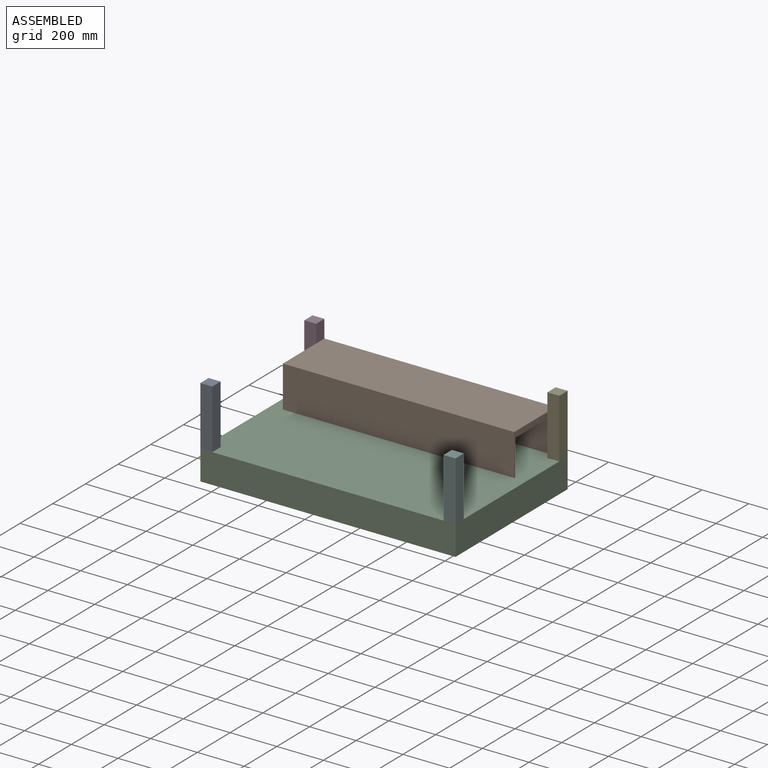
[diagram: assembled view]
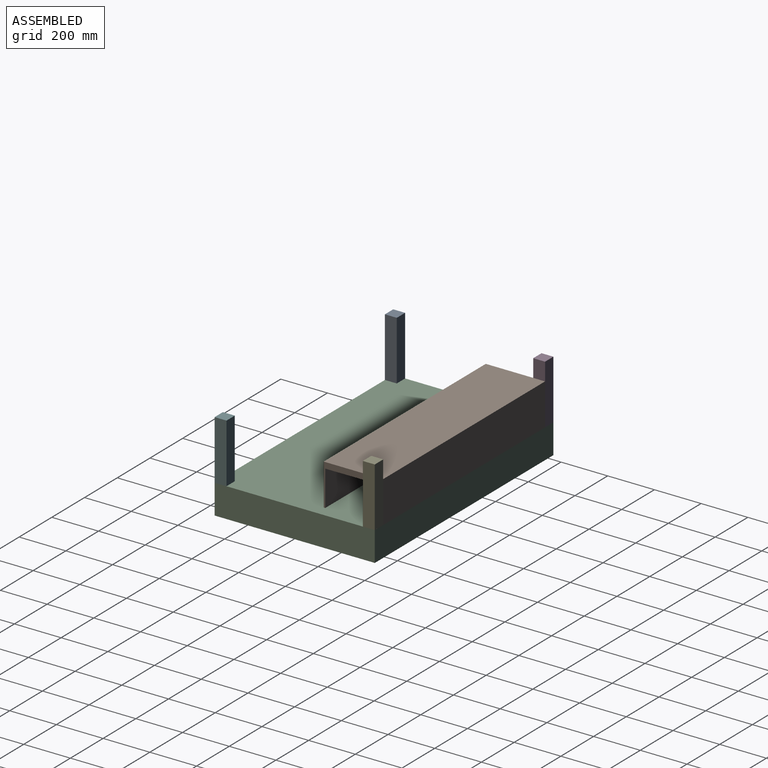
[diagram: assembled view, second angle]
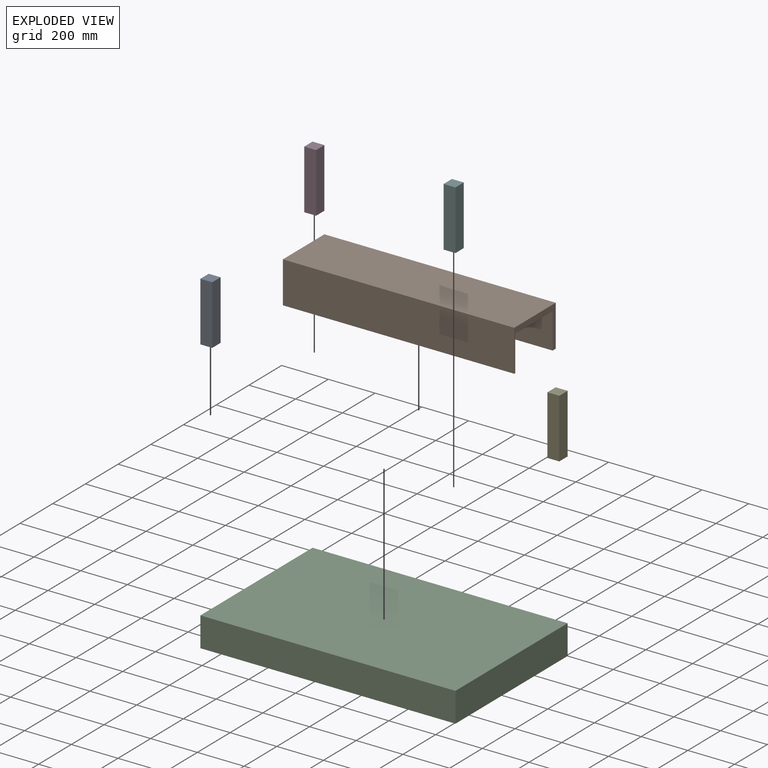
[diagram: exploded view]
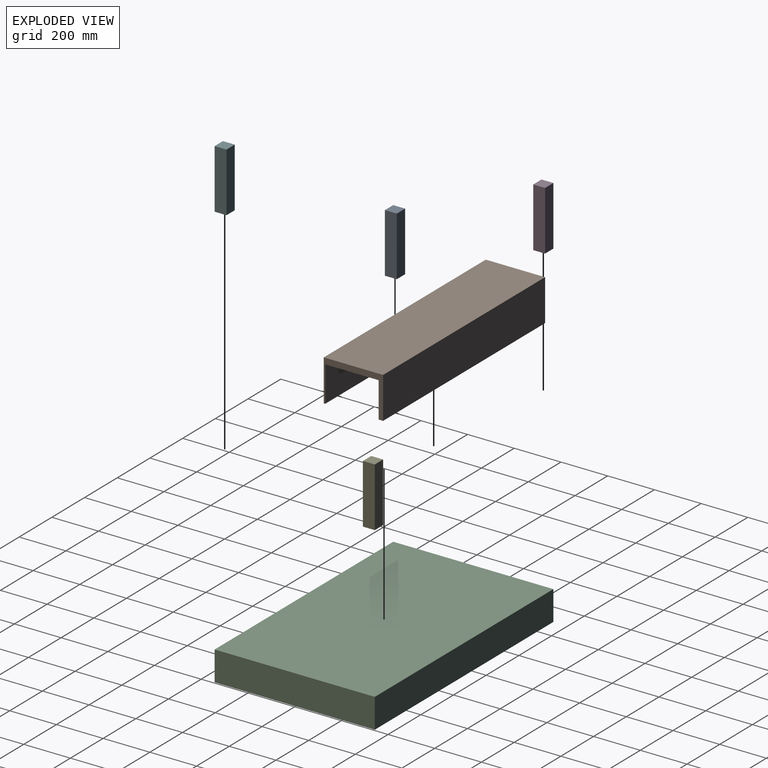
[diagram: exploded view, second angle]
ASSEMBLY  parts=6 mates=6
PART A: 6 faces, bbox 50.8x50.8x254 mm
  f0: plane 254x50.8mm, normal (-1,0,0), area 12903.2mm2, adj f1,f3,f4,f5
  f1: plane 50.8x50.8mm, normal (0,0,-1), area 2580.6mm2, adj f0,f2,f4,f5
  f2: plane 254x50.8mm, normal (1,0,0), area 12903.2mm2, adj f1,f3,f4,f5
  f3: plane 50.8x50.8mm, normal (0,0,1), area 2580.6mm2, adj f0,f2,f4,f5
  f4: plane 254x50.8mm, normal (0,-1,0), area 12903.2mm2, adj f0,f1,f2,f3
  f5: plane 254x50.8mm, normal (0,1,0), area 12903.2mm2, adj f0,f1,f2,f3
PART B: 10 faces, bbox 990.6x254x177.8 mm
  f0: plane 990.6x6.35mm, normal (0,0,-1), area 6290.3mm2, adj f1,f2,f5,f8
  f1: plane 254x177.8mm, normal (-1,0,0), area 10322.6mm2, adj f0,f3,f4,f5,f6,f7,f8,f9
  f2: plane 254x177.8mm, normal (1,0,0), area 10322.6mm2, adj f0,f3,f4,f5,f6,f7,f8,f9
  f3: plane 990.6x19.05mm, normal (0,0,-1), area 18870.9mm2, adj f1,f2,f6,f7
  f4: plane 990.6x254mm, normal (0,0,1), area 251612.4mm2, adj f1,f2,f5,f6
  f5: plane 990.6x177.8mm, normal (0,-1,0), area 176128.7mm2, adj f0,f1,f2,f4
  f6: plane 990.6x177.8mm, normal (0,1,0), area 176128.7mm2, adj f1,f2,f3,f4
  f7: plane 990.6x152.4mm, normal (0,-1,0), area 150967.4mm2, adj f1,f2,f3,f9
  f8: plane 990.6x152.4mm, normal (0,1,0), area 150967.4mm2, adj f0,f1,f2,f9
  f9: plane 990.6x228.6mm, normal (0,0,-1), area 226451.2mm2, adj f1,f2,f7,f8
PART C: 6 faces, bbox 1092.2x685.8x127 mm
  f0: plane 685.8x127mm, normal (-1,0,0), area 87096.6mm2, adj f1,f3,f4,f5
  f1: plane 1092.2x685.8mm, normal (0,0,-1), area 749030.8mm2, adj f0,f2,f4,f5
  f2: plane 685.8x127mm, normal (1,0,0), area 87096.6mm2, adj f1,f3,f4,f5
  f3: plane 1092.2x685.8mm, normal (0,0,1), area 749030.8mm2, adj f0,f2,f4,f5
  f4: plane 1092.2x127mm, normal (0,-1,0), area 138709.4mm2, adj f0,f1,f2,f3
  f5: plane 1092.2x127mm, normal (0,1,0), area 138709.4mm2, adj f0,f1,f2,f3
PART D: same geometry as A
PART E: same geometry as A
PART F: same geometry as A
PLACE A t=(-36.79,-470.64,606.01)mm
PLACE B t=(483.91,164.36,479.01)mm
PLACE C t=(484.02,164.36,352.01)mm
PLACE D t=(-36.79,164.36,606.01)mm
PLACE E t=(1004.61,164.36,606.01)mm
PLACE F t=(1004.61,-470.64,606.01)mm
MATE fastened A.f1 <-> C.f3  axis (0,0,1) through (-62.19,-521.44,479.01)mm
MATE fastened B.f3 <-> D.f1  axis (0,0,1) through (-11.39,164.36,479.01)mm
MATE planar E.f0 <-> B.f2  axis (-1,0,0) through (979.21,164.36,479.01)mm
MATE fastened D.f1 <-> C.f3  axis (0,0,1) through (-62.19,164.36,479.01)mm
MATE fastened E.f1 <-> C.f3  axis (0,0,-1) through (1030.01,164.36,479.01)mm
MATE fastened F.f1 <-> C.f3  axis (0,0,1) through (1030.01,-521.44,479.01)mm
